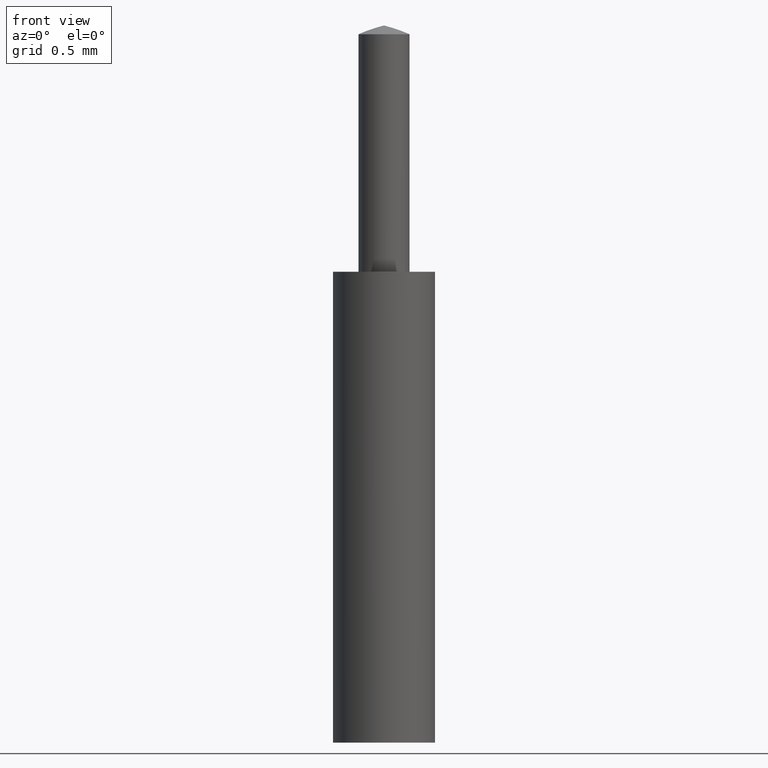
[diagram: clean part render]
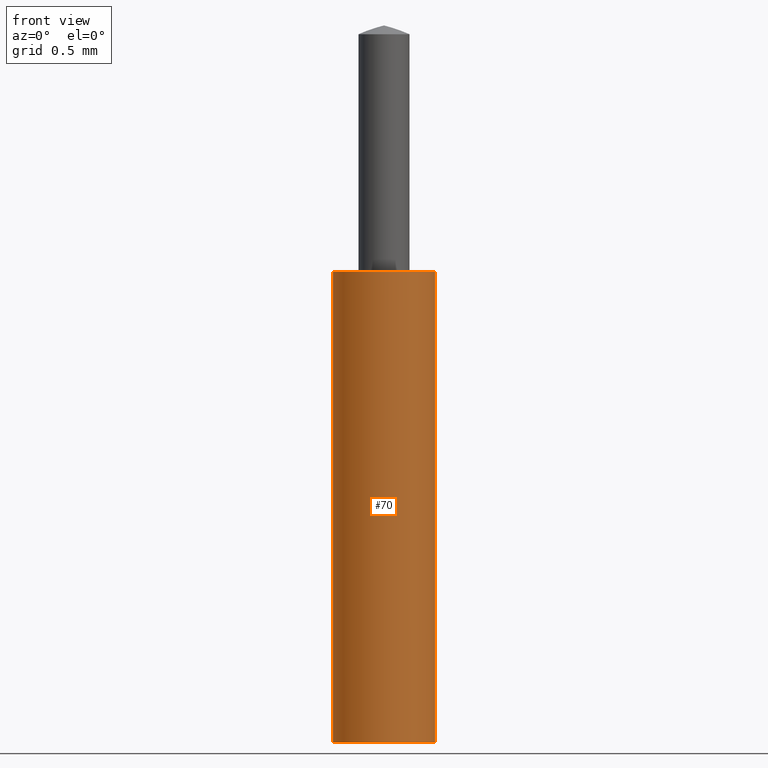
[diagram: same view with one face highlighted and labeled with its STEP entity id]
A machine part, front view. The second image highlights one B-rep face of the part: STEP entity #70.
In plain terms, the highlighted cylindrical surface (partial cylindrical patch) has radius 0.254 mm, axis along (-0, -0, -1).
Its self-contained STEP definition (entity closure, byte-faithful):
#33 = AXIS2_PLACEMENT_3D ( 'NONE', #286, #261, #306 ) ;
#39 = AXIS2_PLACEMENT_3D ( 'NONE', #332, #284, #282 ) ;
#41 = AXIS2_PLACEMENT_3D ( 'NONE', #288, #287, #290 ) ;
#54 = EDGE_CURVE ( 'NONE', #172, #160, #196, .T. ) ;
#59 = EDGE_CURVE ( 'NONE', #174, #157, #221, .T. ) ;
#60 = EDGE_CURVE ( 'NONE', #160, #157, #147, .T. ) ;
#62 = EDGE_CURVE ( 'NONE', #172, #174, #208, .T. ) ;
#70 = ADVANCED_FACE ( 'NONE', ( #185 ), #200, .T. ) ;
#134 = EDGE_LOOP ( 'NONE', ( #215, #230, #219, #204 ) ) ;
#147 = CIRCLE ( 'NONE', #41, 0.01000000000000000000 ) ;
#157 = VERTEX_POINT ( 'NONE', #256 ) ;
#160 = VERTEX_POINT ( 'NONE', #341 ) ;
#163 = VECTOR ( 'NONE', #331, 39.37007874015748100 ) ;
#172 = VERTEX_POINT ( 'NONE', #329 ) ;
#174 = VERTEX_POINT ( 'NONE', #262 ) ;
#176 = VECTOR ( 'NONE', #342, 39.37007874015748100 ) ;
#185 = FACE_OUTER_BOUND ( 'NONE', #134, .T. ) ;
#196 = LINE ( 'NONE', #271, #163 ) ;
#200 = CYLINDRICAL_SURFACE ( 'NONE', #33, 0.01000000000000000000 ) ;
#204 = ORIENTED_EDGE ( 'NONE', *, *, #60, .F. ) ;
#208 = CIRCLE ( 'NONE', #39, 0.01000000000000000000 ) ;
#215 = ORIENTED_EDGE ( 'NONE', *, *, #54, .F. ) ;
#219 = ORIENTED_EDGE ( 'NONE', *, *, #59, .T. ) ;
#221 = LINE ( 'NONE', #292, #176 ) ;
#230 = ORIENTED_EDGE ( 'NONE', *, *, #62, .T. ) ;
#256 = CARTESIAN_POINT ( 'NONE',  ( -0.01000000000000000000, 0.0000000000000000000, 0.0000000000000000000 ) ) ;
#261 = DIRECTION ( 'NONE',  ( -0.0000000000000000000, -0.0000000000000000000, -1.000000000000000000 ) ) ;
#262 = CARTESIAN_POINT ( 'NONE',  ( -0.01000000000000000000, 0.0000000000000000000, 0.09224620568251602800 ) ) ;
#271 = CARTESIAN_POINT ( 'NONE',  ( 0.01000000000000000000, 1.224646799147353400E-018, 0.0000000000000000000 ) ) ;
#282 = DIRECTION ( 'NONE',  ( -1.000000000000000000, 0.0000000000000000000, 0.0000000000000000000 ) ) ;
#284 = DIRECTION ( 'NONE',  ( -0.0000000000000000000, -0.0000000000000000000, -1.000000000000000000 ) ) ;
#286 = CARTESIAN_POINT ( 'NONE',  ( 0.0000000000000000000, 0.0000000000000000000, 0.0000000000000000000 ) ) ;
#287 = DIRECTION ( 'NONE',  ( -0.0000000000000000000, -0.0000000000000000000, -1.000000000000000000 ) ) ;
#288 = CARTESIAN_POINT ( 'NONE',  ( 0.0000000000000000000, 0.0000000000000000000, 0.0000000000000000000 ) ) ;
#290 = DIRECTION ( 'NONE',  ( -1.000000000000000000, 0.0000000000000000000, 0.0000000000000000000 ) ) ;
#292 = CARTESIAN_POINT ( 'NONE',  ( -0.01000000000000000000, 0.0000000000000000000, 0.0000000000000000000 ) ) ;
#306 = DIRECTION ( 'NONE',  ( -1.000000000000000000, 0.0000000000000000000, 0.0000000000000000000 ) ) ;
#329 = CARTESIAN_POINT ( 'NONE',  ( 0.01000000000000000000, 1.224646799147353400E-018, 0.09224620568251602800 ) ) ;
#331 = DIRECTION ( 'NONE',  ( -0.0000000000000000000, -0.0000000000000000000, -1.000000000000000000 ) ) ;
#332 = CARTESIAN_POINT ( 'NONE',  ( 0.0000000000000000000, 0.0000000000000000000, 0.09224620568251602800 ) ) ;
#341 = CARTESIAN_POINT ( 'NONE',  ( 0.01000000000000000000, 1.224646799147353400E-018, 0.0000000000000000000 ) ) ;
#342 = DIRECTION ( 'NONE',  ( -0.0000000000000000000, -0.0000000000000000000, -1.000000000000000000 ) ) ;